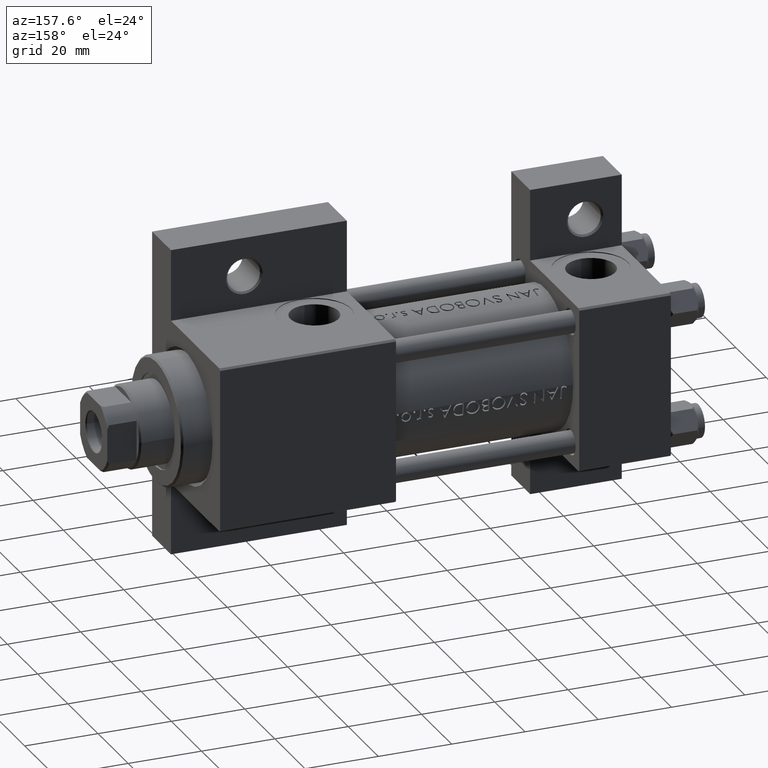
[diagram: clean part render]
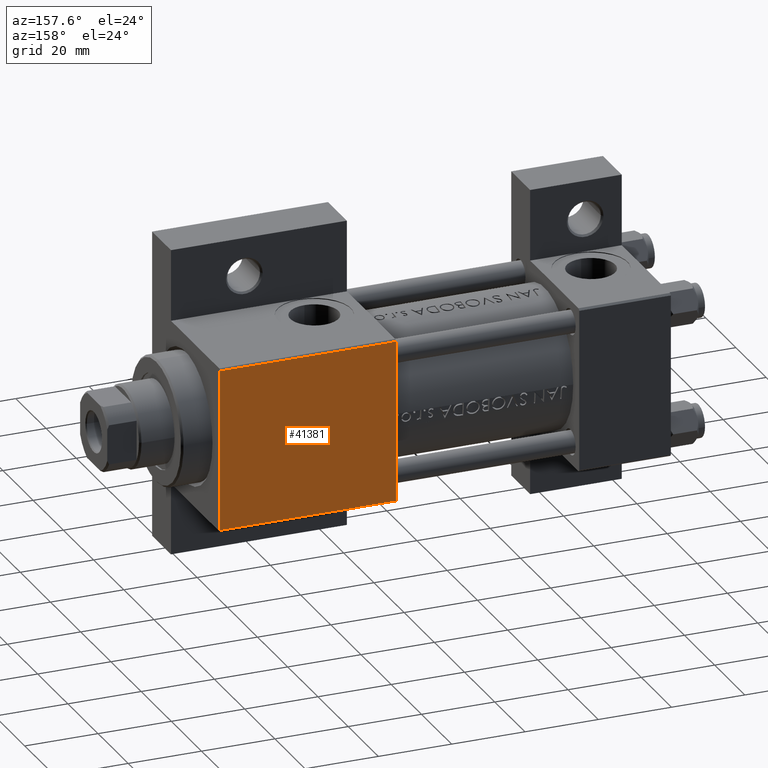
[diagram: same view with one face highlighted and labeled with its STEP entity id]
A machine part, auxiliary view. The second image highlights one B-rep face of the part: STEP entity #41381.
In plain terms, the highlighted planar face has unit normal (0, -1, -0).
Its self-contained STEP definition (entity closure, byte-faithful):
#1012 = CARTESIAN_POINT ( 'NONE',  ( 123.0000000000000142, 22.50000000000000355, 22.50000000000000355 ) ) ;
#1731 = DIRECTION ( 'NONE',  ( 0.000000000000000000, -1.000000000000000000, -2.312964634635742957E-16 ) ) ;
#2549 = CARTESIAN_POINT ( 'NONE',  ( 123.0000000000000142, -21.99999999999998224, 22.49999999999999289 ) ) ;
#2583 = VECTOR ( 'NONE', #35269, 1000.000000000000000 ) ;
#2934 = CARTESIAN_POINT ( 'NONE',  ( 75.00000000000001421, -21.99999999999996803, 22.49999999999999289 ) ) ;
#3414 = CARTESIAN_POINT ( 'NONE',  ( 123.0000000000000142, 21.99999999999998934, 22.50000000000000355 ) ) ;
#5300 = CARTESIAN_POINT ( 'NONE',  ( 123.0000000000000142, 22.50000000000000355, 22.50000000000000355 ) ) ;
#5347 = LINE ( 'NONE', #1012, #11615 ) ;
#6224 = ORIENTED_EDGE ( 'NONE', *, *, #20929, .F. ) ;
#6743 = DIRECTION ( 'NONE',  ( 0.000000000000000000, -1.000000000000000000, -2.312964634635742957E-16 ) ) ;
#8203 = AXIS2_PLACEMENT_3D ( 'NONE', #5300, #17078, #42098 ) ;
#11615 = VECTOR ( 'NONE', #1731, 1000.000000000000000 ) ;
#13282 = VERTEX_POINT ( 'NONE', #2934 ) ;
#13788 = EDGE_LOOP ( 'NONE', ( #6224, #41377, #32037, #25063 ) ) ;
#17078 = DIRECTION ( 'NONE',  ( 0.000000000000000000, 2.312964634635742957E-16, -1.000000000000000000 ) ) ;
#19788 = VERTEX_POINT ( 'NONE', #3414 ) ;
#20459 = PLANE ( 'NONE',  #8203 ) ;
#20598 = CARTESIAN_POINT ( 'NONE',  ( 123.0000000000000142, -21.99999999999996803, 22.49999999999999289 ) ) ;
#20929 = EDGE_CURVE ( 'NONE', #19788, #22912, #5347, .T. ) ;
#21655 = LINE ( 'NONE', #32955, #29590 ) ;
#22912 = VERTEX_POINT ( 'NONE', #20598 ) ;
#23063 = VERTEX_POINT ( 'NONE', #26744 ) ;
#25063 = ORIENTED_EDGE ( 'NONE', *, *, #46833, .T. ) ;
#25505 = LINE ( 'NONE', #43534, #45602 ) ;
#26744 = CARTESIAN_POINT ( 'NONE',  ( 75.00000000000001421, 21.99999999999998934, 22.50000000000000355 ) ) ;
#27904 = FACE_OUTER_BOUND ( 'NONE', #13788, .T. ) ;
#29590 = VECTOR ( 'NONE', #37032, 1000.000000000000000 ) ;
#32037 = ORIENTED_EDGE ( 'NONE', *, *, #46204, .T. ) ;
#32955 = CARTESIAN_POINT ( 'NONE',  ( 75.00000000000001421, 21.99999999999998934, 22.50000000000000355 ) ) ;
#35269 = DIRECTION ( 'NONE',  ( 1.000000000000000000, 0.000000000000000000, 0.000000000000000000 ) ) ;
#35966 = LINE ( 'NONE', #2549, #2583 ) ;
#37032 = DIRECTION ( 'NONE',  ( -1.000000000000000000, 0.000000000000000000, 0.000000000000000000 ) ) ;
#38188 = EDGE_CURVE ( 'NONE', #19788, #23063, #21655, .T. ) ;
#41377 = ORIENTED_EDGE ( 'NONE', *, *, #38188, .T. ) ;
#41381 = ADVANCED_FACE ( 'NONE', ( #27904 ), #20459, .F. ) ;
#42098 = DIRECTION ( 'NONE',  ( 0.000000000000000000, 1.000000000000000000, 2.312964634635742957E-16 ) ) ;
#43534 = CARTESIAN_POINT ( 'NONE',  ( 75.00000000000001421, 22.50000000000000355, 22.50000000000000355 ) ) ;
#45602 = VECTOR ( 'NONE', #6743, 1000.000000000000000 ) ;
#46204 = EDGE_CURVE ( 'NONE', #23063, #13282, #25505, .T. ) ;
#46833 = EDGE_CURVE ( 'NONE', #13282, #22912, #35966, .T. ) ;